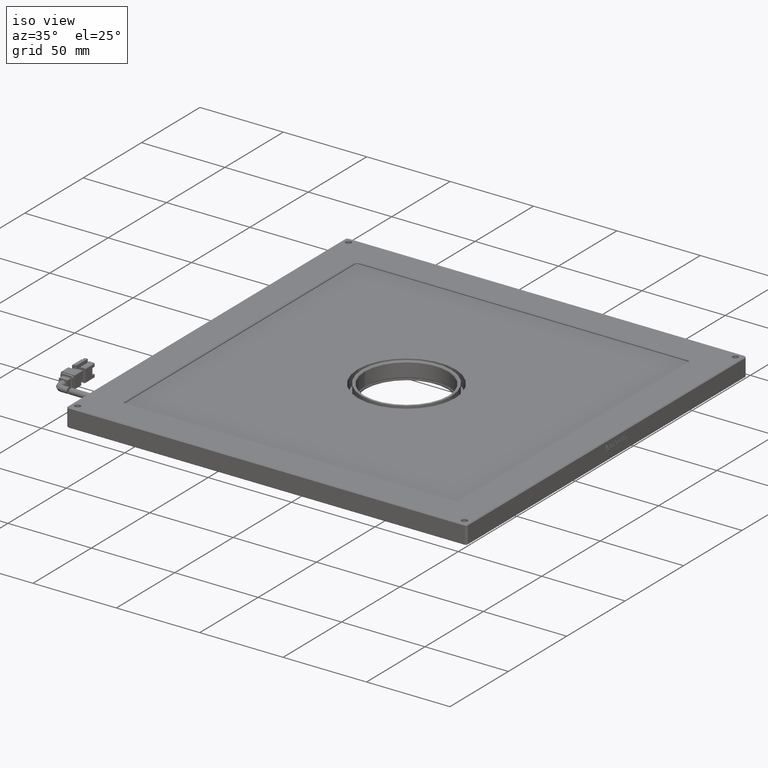
[diagram: clean part render]
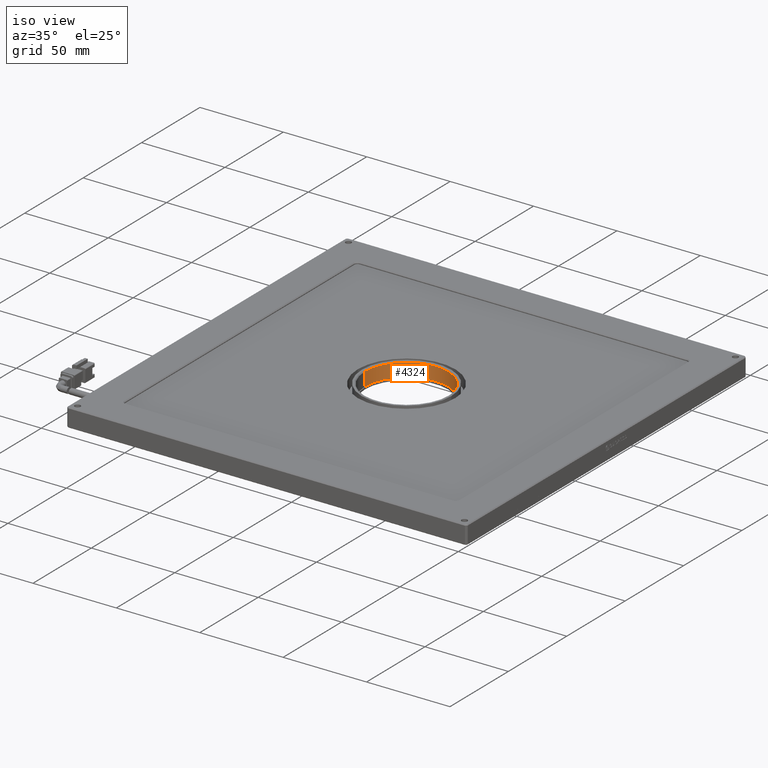
[diagram: same view with one face highlighted and labeled with its STEP entity id]
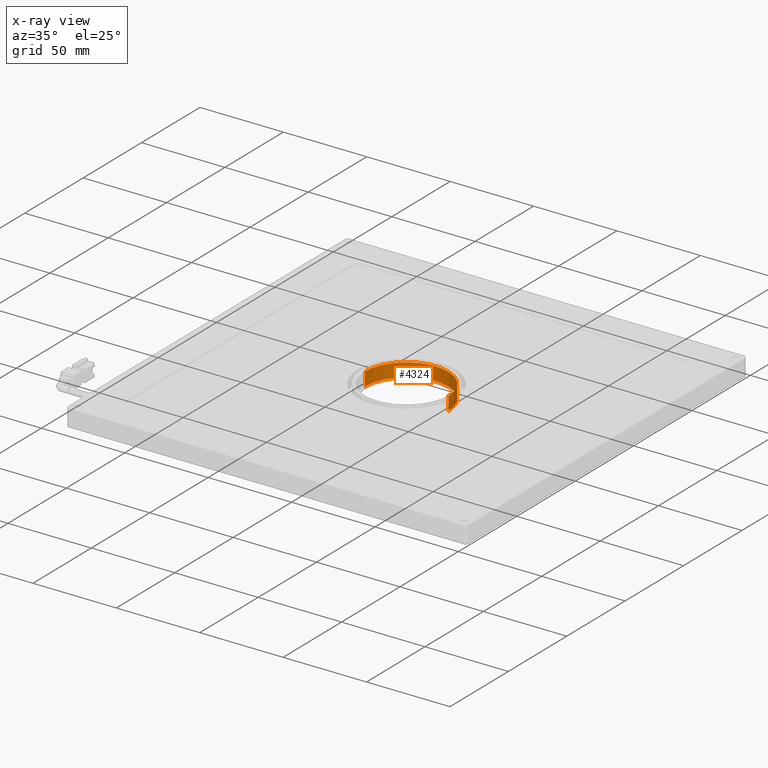
[diagram: x-ray of the same camera — body ghosted, the highlighted face saturated]
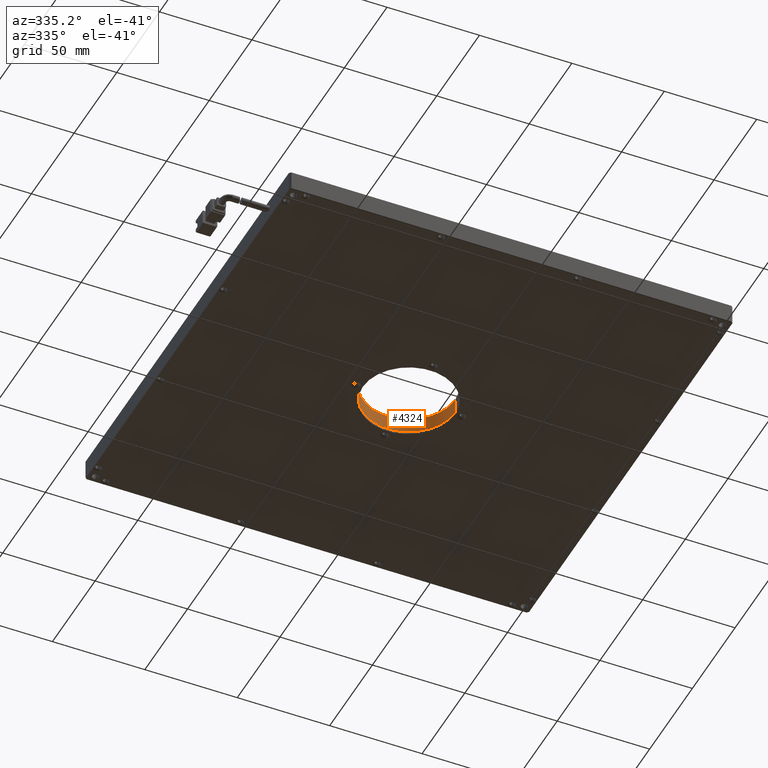
[diagram: same view with one face highlighted and labeled with its STEP entity id]
A machine part, iso view. The second image highlights one B-rep face of the part: STEP entity #4324.
The next image is the same camera in x-ray: the body ghosted, the highlighted face saturated — about 0% of this face is hidden behind the body in this view.
A second angle (auxiliary view) of the same face is appended — the face is thin or edge-on in the first view.
In plain terms, the highlighted cylindrical surface (partial cylindrical patch) has radius 25 mm, axis along (0, -0, 1).
Its self-contained STEP definition (entity closure, byte-faithful):
#1126 = CYLINDRICAL_SURFACE ( 'NONE', #11800, 25.00000000000003900 ) ;
#1667 = EDGE_CURVE ( 'NONE', #19734, #18619, #7778, .T. ) ;
#2964 = DIRECTION ( 'NONE',  ( -0.9999999981467232500, 6.088147129323919200E-005, 0.0000000000000000000 ) ) ;
#2998 = CARTESIAN_POINT ( 'NONE',  ( 10.94710549878895700, 18.54225001654977200, 3.700000000000017500 ) ) ;
#3891 = EDGE_CURVE ( 'NONE', #18619, #21876, #4115, .T. ) ;
#4115 = CIRCLE ( 'NONE', #12385, 25.00000000000003900 ) ;
#4324 = ADVANCED_FACE ( 'NONE', ( #5633 ), #1126, .F. ) ;
#4392 = CARTESIAN_POINT ( 'NONE',  ( -39.05289440854727400, 18.54529409011443900, -3.000000000000000000 ) ) ;
#4608 = DIRECTION ( 'NONE',  ( 0.0000000000000000000, -0.0000000000000000000, 1.000000000000000000 ) ) ;
#4685 = CARTESIAN_POINT ( 'NONE',  ( 10.94710549878896100, 18.54225001654977200, -3.000000000000000000 ) ) ;
#5285 = CARTESIAN_POINT ( 'NONE',  ( -14.05289445487915900, 18.54377205333210600, -4.499999999999988500 ) ) ;
#5404 = ORIENTED_EDGE ( 'NONE', *, *, #1667, .F. ) ;
#5633 = FACE_OUTER_BOUND ( 'NONE', #13139, .T. ) ;
#6106 = DIRECTION ( 'NONE',  ( 0.0000000000000000000, -0.0000000000000000000, 1.000000000000000000 ) ) ;
#6849 = ORIENTED_EDGE ( 'NONE', *, *, #14964, .T. ) ;
#7011 = DIRECTION ( 'NONE',  ( 0.0000000000000000000, 0.0000000000000000000, -1.000000000000000000 ) ) ;
#7048 = EDGE_CURVE ( 'NONE', #11205, #21876, #9719, .T. ) ;
#7186 = DIRECTION ( 'NONE',  ( -0.9999999981467232500, 6.088147129323919200E-005, 0.0000000000000000000 ) ) ;
#7778 = LINE ( 'NONE', #4392, #18975 ) ;
#9719 = LINE ( 'NONE', #4685, #13750 ) ;
#11205 = VERTEX_POINT ( 'NONE', #16623 ) ;
#11505 = CARTESIAN_POINT ( 'NONE',  ( -14.05289445487915900, 18.54377205333210600, -3.000000000000000000 ) ) ;
#11708 = AXIS2_PLACEMENT_3D ( 'NONE', #5285, #7011, #13847 ) ;
#11800 = AXIS2_PLACEMENT_3D ( 'NONE', #11505, #16724, #2964 ) ;
#12385 = AXIS2_PLACEMENT_3D ( 'NONE', #14246, #17578, #7186 ) ;
#12706 = CARTESIAN_POINT ( 'NONE',  ( -39.05289440854727400, 18.54529409011443900, 3.700000000000017500 ) ) ;
#13139 = EDGE_LOOP ( 'NONE', ( #6849, #14222, #17876, #5404 ) ) ;
#13750 = VECTOR ( 'NONE', #4608, 1000.000000000000000 ) ;
#13847 = DIRECTION ( 'NONE',  ( 0.9999999981467232500, -6.088147129323923200E-005, 0.0000000000000000000 ) ) ;
#14222 = ORIENTED_EDGE ( 'NONE', *, *, #7048, .T. ) ;
#14246 = CARTESIAN_POINT ( 'NONE',  ( -14.05289445487915900, 18.54377205333210600, 3.700000000000017500 ) ) ;
#14516 = CARTESIAN_POINT ( 'NONE',  ( -39.05289440854725300, 18.54529409011443900, -4.499999999999988500 ) ) ;
#14964 = EDGE_CURVE ( 'NONE', #19734, #11205, #15607, .T. ) ;
#15607 = CIRCLE ( 'NONE', #11708, 25.00000000000002100 ) ;
#16623 = CARTESIAN_POINT ( 'NONE',  ( 10.94710549878894300, 18.54225001654977200, -4.499999999999988500 ) ) ;
#16724 = DIRECTION ( 'NONE',  ( 0.0000000000000000000, -0.0000000000000000000, 1.000000000000000000 ) ) ;
#17578 = DIRECTION ( 'NONE',  ( -0.0000000000000000000, 0.0000000000000000000, -1.000000000000000000 ) ) ;
#17876 = ORIENTED_EDGE ( 'NONE', *, *, #3891, .F. ) ;
#18619 = VERTEX_POINT ( 'NONE', #12706 ) ;
#18975 = VECTOR ( 'NONE', #6106, 1000.000000000000000 ) ;
#19734 = VERTEX_POINT ( 'NONE', #14516 ) ;
#21876 = VERTEX_POINT ( 'NONE', #2998 ) ;